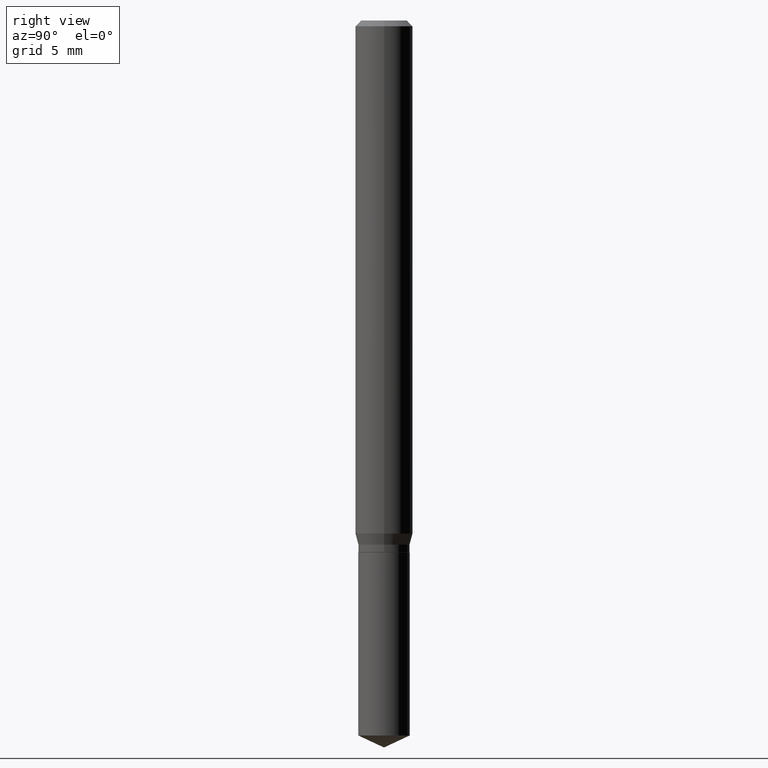
[diagram: clean part render]
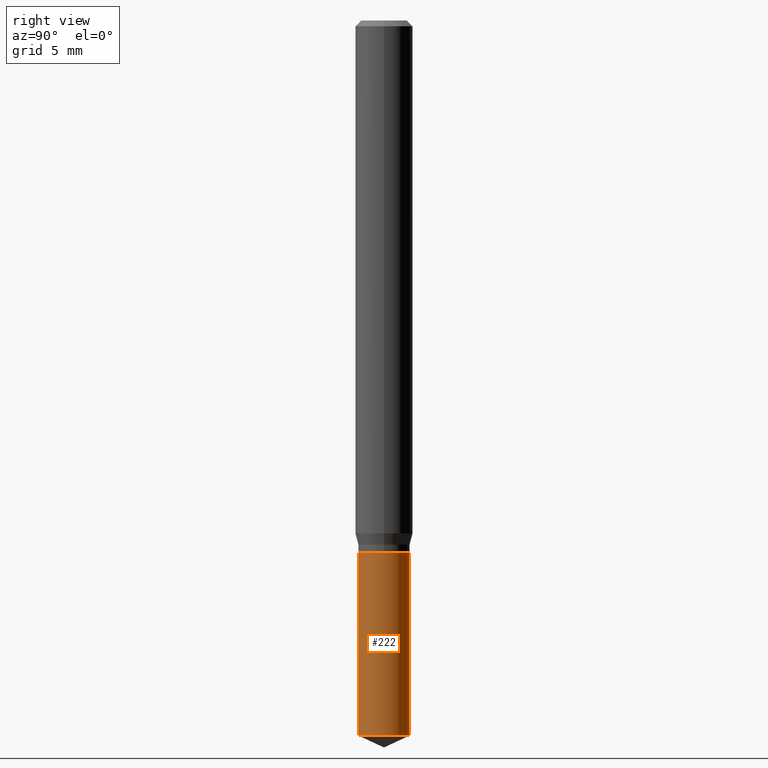
[diagram: same view with one face highlighted and labeled with its STEP entity id]
A machine part, right view. The second image highlights one B-rep face of the part: STEP entity #222.
In plain terms, the highlighted cylindrical surface (edge-blend (fillet) strip) has radius 1.3449 mm, axis along (-0, 0, 1).
Its self-contained STEP definition (entity closure, byte-faithful):
#7 = DIRECTION ( 'NONE',  ( -2.445458899330790108E-29, 3.491495526022433205E-15, 1.000000000000000000 ) ) ;
#14 = EDGE_CURVE ( 'NONE', #332, #61, #310, .T. ) ;
#51 = CYLINDRICAL_SURFACE ( 'NONE', #108, 0.05294999999999999707 ) ;
#60 = VECTOR ( 'NONE', #398, 39.37007874015748143 ) ;
#61 = VERTEX_POINT ( 'NONE', #193 ) ;
#89 = CARTESIAN_POINT ( 'NONE',  ( 3.762323785850089208E-16, 0.05294999999999484841, -1.471409009500693088 ) ) ;
#96 = VERTEX_POINT ( 'NONE', #261 ) ;
#108 = AXIS2_PLACEMENT_3D ( 'NONE', #351, #468, #123 ) ;
#123 = DIRECTION ( 'NONE',  ( -6.982962677686265922E-15, -1.000000000000000000, 2.579648719229710314E-15 ) ) ;
#145 = VERTEX_POINT ( 'NONE', #89 ) ;
#158 = FACE_OUTER_BOUND ( 'NONE', #406, .T. ) ;
#175 = CARTESIAN_POINT ( 'NONE',  ( -3.697478737834609959E-16, -0.05295000000000382040, -1.094499999999999806 ) ) ;
#181 = CIRCLE ( 'NONE', #241, 0.05294999999999999707 ) ;
#193 = CARTESIAN_POINT ( 'NONE',  ( 3.762323785850089701E-16, 0.05294999999999616680, -1.094500000000000028 ) ) ;
#207 = LINE ( 'NONE', #367, #275 ) ;
#213 = DIRECTION ( 'NONE',  ( -2.445458899330790108E-29, 3.491495526022433599E-15, 1.000000000000000000 ) ) ;
#216 = ORIENTED_EDGE ( 'NONE', *, *, #14, .F. ) ;
#217 = CARTESIAN_POINT ( 'NONE',  ( 3.762323785849997010E-16, 0.05294999999999616680, -1.094500000000000028 ) ) ;
#222 = ADVANCED_FACE ( 'NONE', ( #158 ), #51, .T. ) ;
#231 = ORIENTED_EDGE ( 'NONE', *, *, #277, .T. ) ;
#241 = AXIS2_PLACEMENT_3D ( 'NONE', #432, #282, #280 ) ;
#255 = ORIENTED_EDGE ( 'NONE', *, *, #458, .T. ) ;
#261 = CARTESIAN_POINT ( 'NONE',  ( -3.697478737834517268E-16, -0.05295000000000512491, -1.471409009500692644 ) ) ;
#275 = VECTOR ( 'NONE', #213, 39.37007874015748143 ) ;
#277 = EDGE_CURVE ( 'NONE', #96, #145, #181, .T. ) ;
#280 = DIRECTION ( 'NONE',  ( -6.982962677686265922E-15, -1.000000000000000000, 5.159297438459420627E-15 ) ) ;
#282 = DIRECTION ( 'NONE',  ( -2.445458899330790108E-29, 3.491495526022433205E-15, 1.000000000000000000 ) ) ;
#310 = CIRCLE ( 'NONE', #403, 0.05294999999999999707 ) ;
#318 = EDGE_CURVE ( 'NONE', #96, #332, #207, .T. ) ;
#332 = VERTEX_POINT ( 'NONE', #175 ) ;
#351 = CARTESIAN_POINT ( 'NONE',  ( 2.676565608369631794E-29, -3.821426325363822773E-15, -1.094499999999999806 ) ) ;
#367 = CARTESIAN_POINT ( 'NONE',  ( -3.697478737834609959E-16, -0.05295000000000382040, -1.094499999999999806 ) ) ;
#376 = ORIENTED_EDGE ( 'NONE', *, *, #318, .F. ) ;
#380 = CARTESIAN_POINT ( 'NONE',  ( 2.676565608369631794E-29, -3.821426325363822773E-15, -1.094499999999999806 ) ) ;
#398 = DIRECTION ( 'NONE',  ( -2.445458899330790108E-29, 3.491495526022433599E-15, 1.000000000000000000 ) ) ;
#403 = AXIS2_PLACEMENT_3D ( 'NONE', #380, #7, #416 ) ;
#406 = EDGE_LOOP ( 'NONE', ( #231, #255, #216, #376 ) ) ;
#416 = DIRECTION ( 'NONE',  ( -6.982962677686265922E-15, -1.000000000000000000, 2.579648719229710314E-15 ) ) ;
#432 = CARTESIAN_POINT ( 'NONE',  ( 3.598281099891054021E-29, -5.137402445753038506E-15, -1.471409009500692866 ) ) ;
#445 = LINE ( 'NONE', #217, #60 ) ;
#458 = EDGE_CURVE ( 'NONE', #145, #61, #445, .T. ) ;
#468 = DIRECTION ( 'NONE',  ( -2.445458899330790108E-29, 3.491495526022433205E-15, 1.000000000000000000 ) ) ;